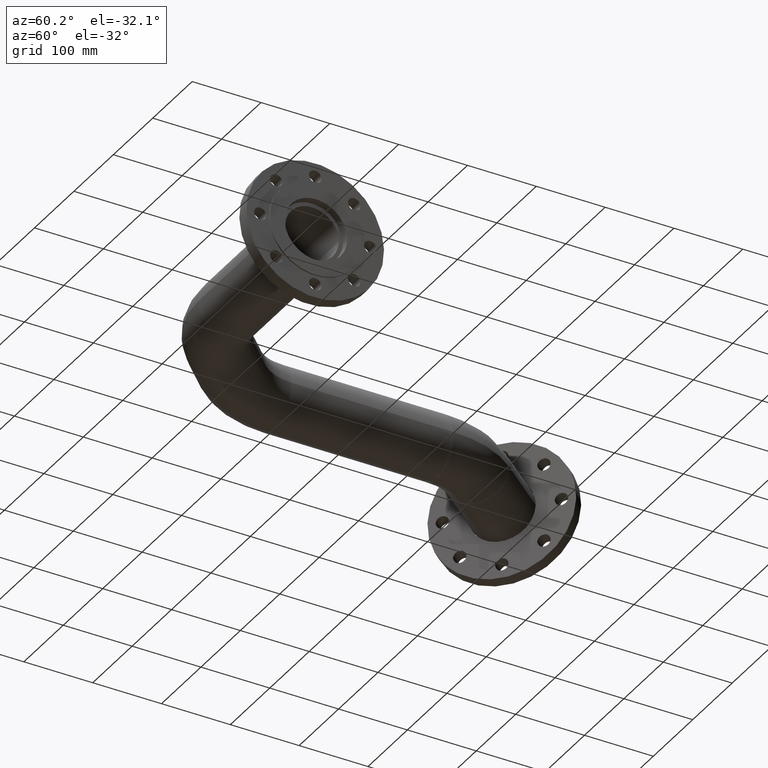
[diagram: clean part render]
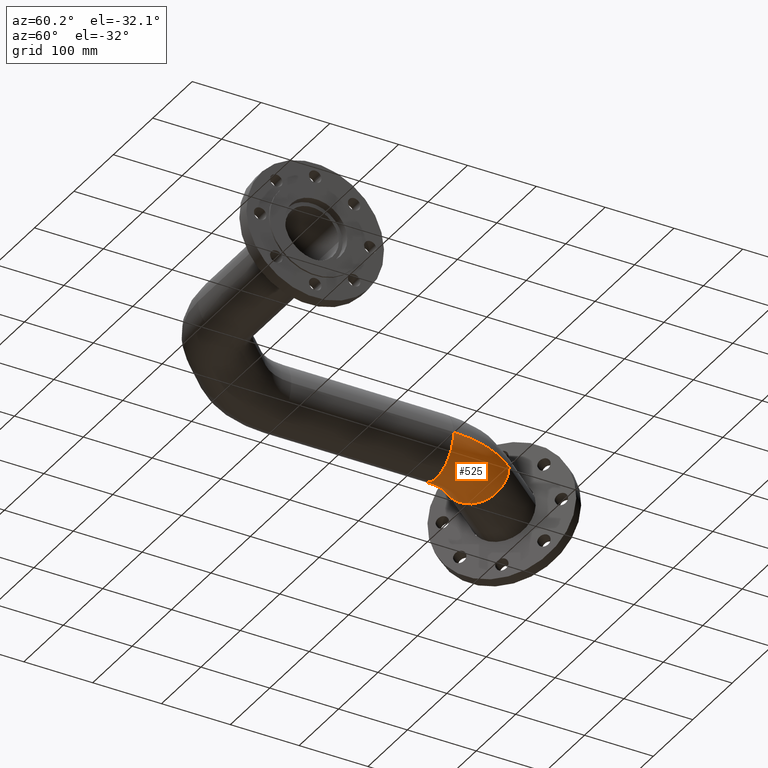
[diagram: same view with one face highlighted and labeled with its STEP entity id]
A machine part, auxiliary view. The second image highlights one B-rep face of the part: STEP entity #525.
In plain terms, the highlighted toroidal blend (fillet) surface has major radius 114 mm and minor (blend) radius 44.45 mm.
Its self-contained STEP definition (entity closure, byte-faithful):
#40 = CARTESIAN_POINT ( 'NONE',  ( -44.70587825369852197, 53.27839101892515572, -5.443555022209986486E-15 ) ) ;
#107 = AXIS2_PLACEMENT_3D ( 'NONE', #2386, #1433, #1090 ) ;
#139 = CARTESIAN_POINT ( 'NONE',  ( 0.000000000000000000, 0.000000000000000000, -5.443555022209986486E-15 ) ) ;
#145 = AXIS2_PLACEMENT_3D ( 'NONE', #1805, #2005, #1852 ) ;
#217 = CIRCLE ( 'NONE', #107, 44.45000000000000995 ) ;
#328 = DIRECTION ( 'NONE',  ( 1.000000000000000000, 0.000000000000000000, 0.000000000000000000 ) ) ;
#346 = CARTESIAN_POINT ( 'NONE',  ( -101.8496967548315126, 121.3797420122026267, 0.000000000000000000 ) ) ;
#404 = CARTESIAN_POINT ( 'NONE',  ( 0.000000000000000000, 114.0000000000000000, 0.000000000000000000 ) ) ;
#449 = CARTESIAN_POINT ( 'NONE',  ( 0.000000000000000000, 0.000000000000000000, 0.000000000000000000 ) ) ;
#451 = EDGE_CURVE ( 'NONE', #974, #658, #2012, .T. ) ;
#525 = ADVANCED_FACE ( 'NONE', ( #858 ), #1908, .T. ) ;
#658 = VERTEX_POINT ( 'NONE', #1829 ) ;
#710 = EDGE_CURVE ( 'NONE', #2266, #1587, #217, .T. ) ;
#725 = ORIENTED_EDGE ( 'NONE', *, *, #793, .T. ) ;
#731 = EDGE_CURVE ( 'NONE', #658, #1587, #2016, .T. ) ;
#793 = EDGE_CURVE ( 'NONE', #974, #2266, #1055, .T. ) ;
#858 = FACE_OUTER_BOUND ( 'NONE', #907, .T. ) ;
#891 = DIRECTION ( 'NONE',  ( 0.000000000000000000, 0.000000000000000000, 1.000000000000000000 ) ) ;
#907 = EDGE_LOOP ( 'NONE', ( #2280, #1735, #725, #2003 ) ) ;
#974 = VERTEX_POINT ( 'NONE', #2049 ) ;
#1054 = DIRECTION ( 'NONE',  ( 1.000000000000000000, 0.000000000000000000, 0.000000000000000000 ) ) ;
#1055 = CIRCLE ( 'NONE', #1825, 69.54999999999999716 ) ;
#1090 = DIRECTION ( 'NONE',  ( 0.000000000000000000, 0.000000000000000000, -1.000000000000000000 ) ) ;
#1170 = DIRECTION ( 'NONE',  ( 1.000000000000000000, 0.000000000000000000, 0.000000000000000000 ) ) ;
#1217 = DIRECTION ( 'NONE',  ( 0.000000000000000000, 0.000000000000000000, 1.000000000000000000 ) ) ;
#1433 = DIRECTION ( 'NONE',  ( 0.7660444431189816772, 0.6427876096865352551, 0.000000000000000000 ) ) ;
#1587 = VERTEX_POINT ( 'NONE', #346 ) ;
#1735 = ORIENTED_EDGE ( 'NONE', *, *, #451, .F. ) ;
#1805 = CARTESIAN_POINT ( 'NONE',  ( 0.000000000000000000, 0.000000000000000000, 0.000000000000000000 ) ) ;
#1825 = AXIS2_PLACEMENT_3D ( 'NONE', #139, #891, #328 ) ;
#1829 = CARTESIAN_POINT ( 'NONE',  ( 0.000000000000000000, 158.4500000000000171, 0.000000000000000000 ) ) ;
#1852 = DIRECTION ( 'NONE',  ( 1.000000000000000000, 0.000000000000000000, 0.000000000000000000 ) ) ;
#1908 = TOROIDAL_SURFACE ( 'NONE', #2264, 114.0000000000000000, 44.45000000000000995 ) ;
#2003 = ORIENTED_EDGE ( 'NONE', *, *, #710, .T. ) ;
#2005 = DIRECTION ( 'NONE',  ( 0.000000000000000000, 0.000000000000000000, 1.000000000000000000 ) ) ;
#2012 = CIRCLE ( 'NONE', #2095, 44.45000000000000995 ) ;
#2016 = CIRCLE ( 'NONE', #145, 158.4500000000000171 ) ;
#2049 = CARTESIAN_POINT ( 'NONE',  ( 0.000000000000000000, 69.54999999999999716, -5.443555022209988064E-15 ) ) ;
#2095 = AXIS2_PLACEMENT_3D ( 'NONE', #404, #1170, #2244 ) ;
#2244 = DIRECTION ( 'NONE',  ( 0.000000000000000000, 0.000000000000000000, -1.000000000000000000 ) ) ;
#2264 = AXIS2_PLACEMENT_3D ( 'NONE', #449, #1217, #1054 ) ;
#2266 = VERTEX_POINT ( 'NONE', #40 ) ;
#2280 = ORIENTED_EDGE ( 'NONE', *, *, #731, .F. ) ;
#2386 = CARTESIAN_POINT ( 'NONE',  ( -73.27778750426502086, 87.32906651556389477, 0.000000000000000000 ) ) ;